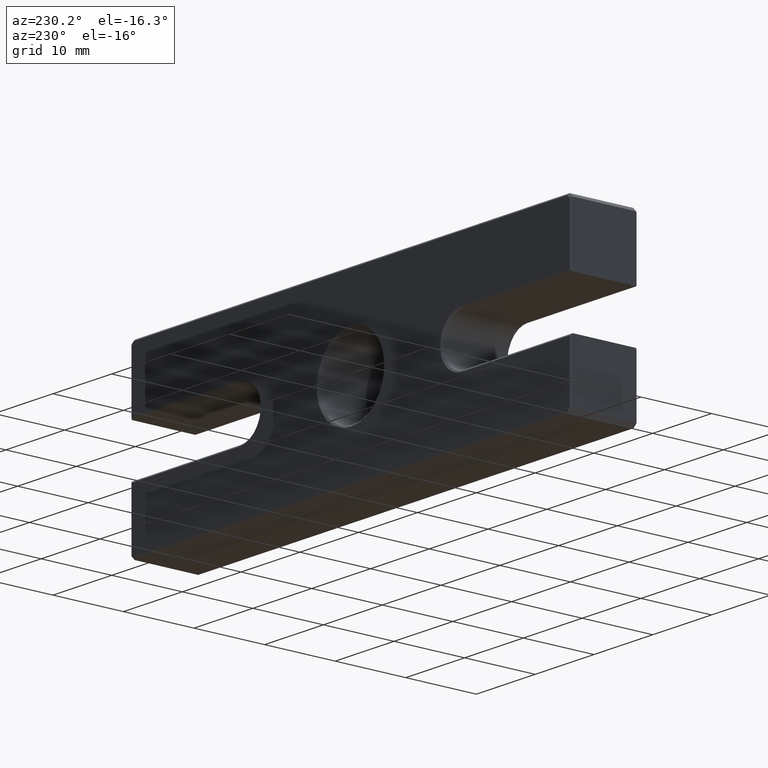
[diagram: clean part render]
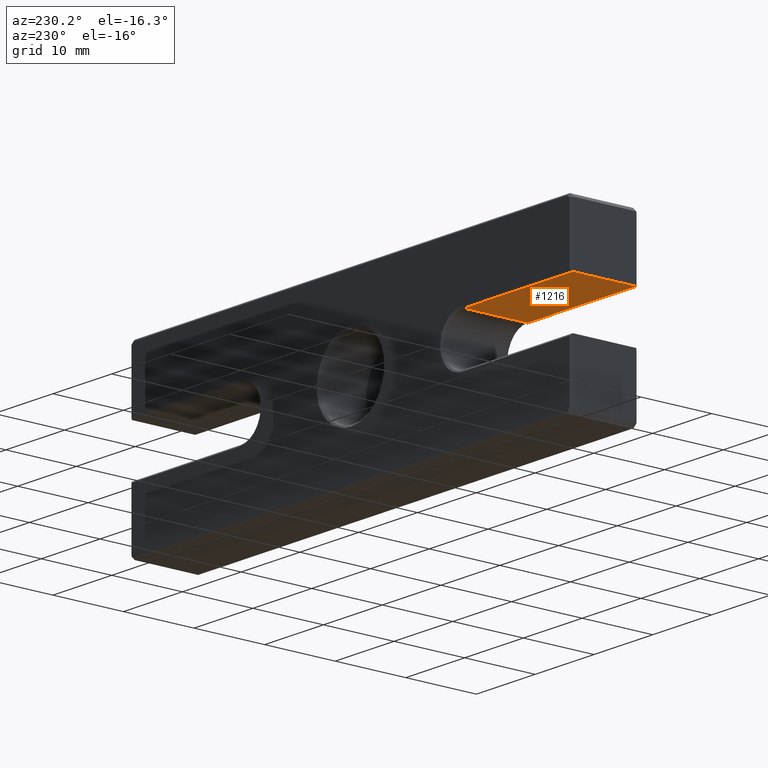
[diagram: same view with one face highlighted and labeled with its STEP entity id]
A machine part, auxiliary view. The second image highlights one B-rep face of the part: STEP entity #1216.
In plain terms, the highlighted planar face has unit normal (0, 0, 1).
Its self-contained STEP definition (entity closure, byte-faithful):
#12 = CARTESIAN_POINT ( 'NONE',  ( -37.49999999999999289, 9.500000000000000000, 3.499999999999997780 ) ) ;
#22 = EDGE_CURVE ( 'NONE', #178, #243, #1047, .T. ) ;
#178 = VERTEX_POINT ( 'NONE', #1333 ) ;
#235 = LINE ( 'NONE', #1401, #976 ) ;
#243 = VERTEX_POINT ( 'NONE', #627 ) ;
#290 = DIRECTION ( 'NONE',  ( 1.000000000000000000, 0.000000000000000000, -1.235698774602665477E-17 ) ) ;
#295 = VERTEX_POINT ( 'NONE', #1497 ) ;
#343 = ORIENTED_EDGE ( 'NONE', *, *, #591, .T. ) ;
#404 = ORIENTED_EDGE ( 'NONE', *, *, #542, .T. ) ;
#492 = CARTESIAN_POINT ( 'NONE',  ( -19.00000000000000355, 9.250000000000014211, 3.499999999999999112 ) ) ;
#542 = EDGE_CURVE ( 'NONE', #732, #243, #727, .T. ) ;
#585 = DIRECTION ( 'NONE',  ( 0.000000000000000000, -1.000000000000000000, 0.000000000000000000 ) ) ;
#591 = EDGE_CURVE ( 'NONE', #178, #295, #966, .T. ) ;
#626 = DIRECTION ( 'NONE',  ( -1.000000000000000000, 0.000000000000000000, 1.235698774602665477E-17 ) ) ;
#627 = CARTESIAN_POINT ( 'NONE',  ( -37.49999999999999289, 0.2500000000000071609, 3.499999999999997780 ) ) ;
#703 = EDGE_LOOP ( 'NONE', ( #888, #404, #1501, #343 ) ) ;
#706 = DIRECTION ( 'NONE',  ( -0.000000000000000000, 1.000000000000000000, -0.000000000000000000 ) ) ;
#727 = LINE ( 'NONE', #961, #1114 ) ;
#732 = VERTEX_POINT ( 'NONE', #906 ) ;
#817 = VECTOR ( 'NONE', #290, 1000.000000000000000 ) ;
#888 = ORIENTED_EDGE ( 'NONE', *, *, #913, .F. ) ;
#897 = VECTOR ( 'NONE', #585, 1000.000000000000000 ) ;
#906 = CARTESIAN_POINT ( 'NONE',  ( -19.00000000000000355, 0.2499999999999880651, 3.499999999999999112 ) ) ;
#913 = EDGE_CURVE ( 'NONE', #732, #295, #235, .T. ) ;
#952 = AXIS2_PLACEMENT_3D ( 'NONE', #1394, #1377, #1048 ) ;
#961 = CARTESIAN_POINT ( 'NONE',  ( -19.00000000000000355, 0.2499999999999881206, 3.499999999999999112 ) ) ;
#966 = LINE ( 'NONE', #492, #817 ) ;
#976 = VECTOR ( 'NONE', #706, 1000.000000000000000 ) ;
#1026 = PLANE ( 'NONE',  #952 ) ;
#1047 = LINE ( 'NONE', #12, #897 ) ;
#1048 = DIRECTION ( 'NONE',  ( 1.000000000000000000, 0.000000000000000000, -1.235698774602665477E-17 ) ) ;
#1114 = VECTOR ( 'NONE', #626, 1000.000000000000000 ) ;
#1216 = ADVANCED_FACE ( 'NONE', ( #1515 ), #1026, .F. ) ;
#1333 = CARTESIAN_POINT ( 'NONE',  ( -37.49999999999999289, 9.250000000000000000, 3.499999999999999556 ) ) ;
#1377 = DIRECTION ( 'NONE',  ( 1.235698774602665477E-17, 0.000000000000000000, 1.000000000000000000 ) ) ;
#1394 = CARTESIAN_POINT ( 'NONE',  ( -19.00000000000000355, 0.000000000000000000, 3.499999999999999112 ) ) ;
#1401 = CARTESIAN_POINT ( 'NONE',  ( -19.00000000000000355, 0.000000000000000000, 3.499999999999999112 ) ) ;
#1497 = CARTESIAN_POINT ( 'NONE',  ( -19.00000000000000355, 9.250000000000014211, 3.499999999999999112 ) ) ;
#1501 = ORIENTED_EDGE ( 'NONE', *, *, #22, .F. ) ;
#1515 = FACE_OUTER_BOUND ( 'NONE', #703, .T. ) ;